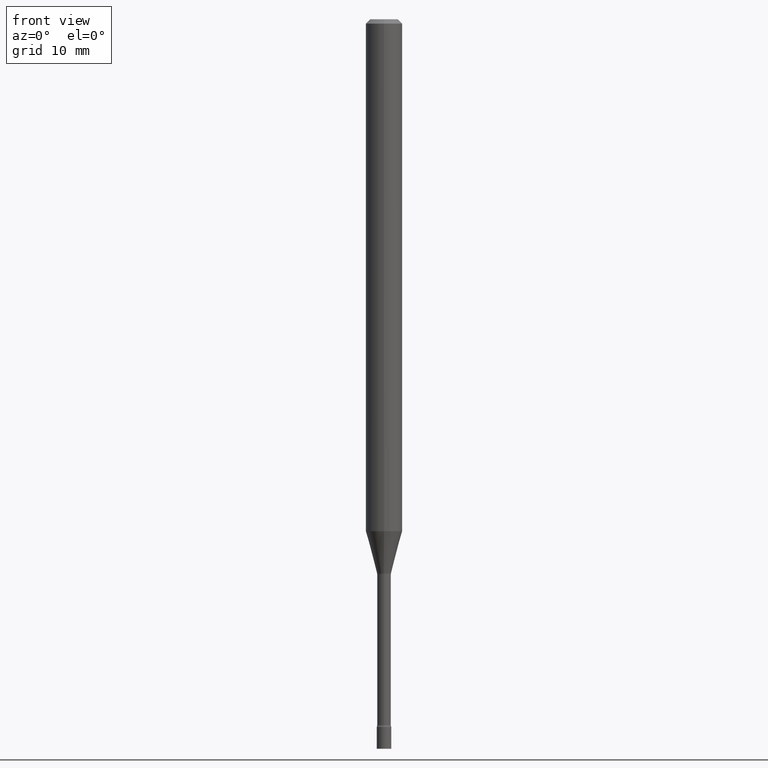
[diagram: clean part render]
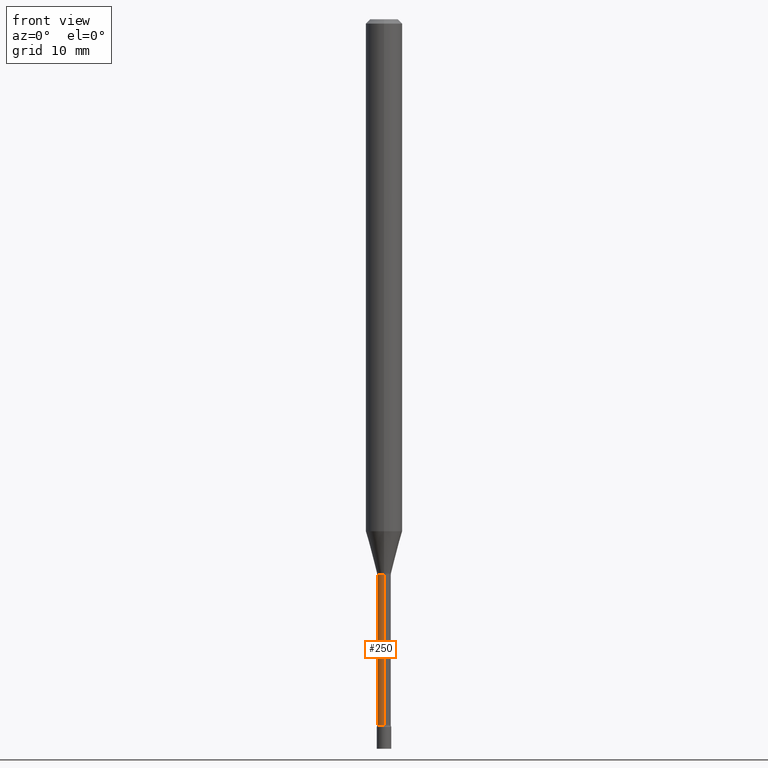
[diagram: same view with one face highlighted and labeled with its STEP entity id]
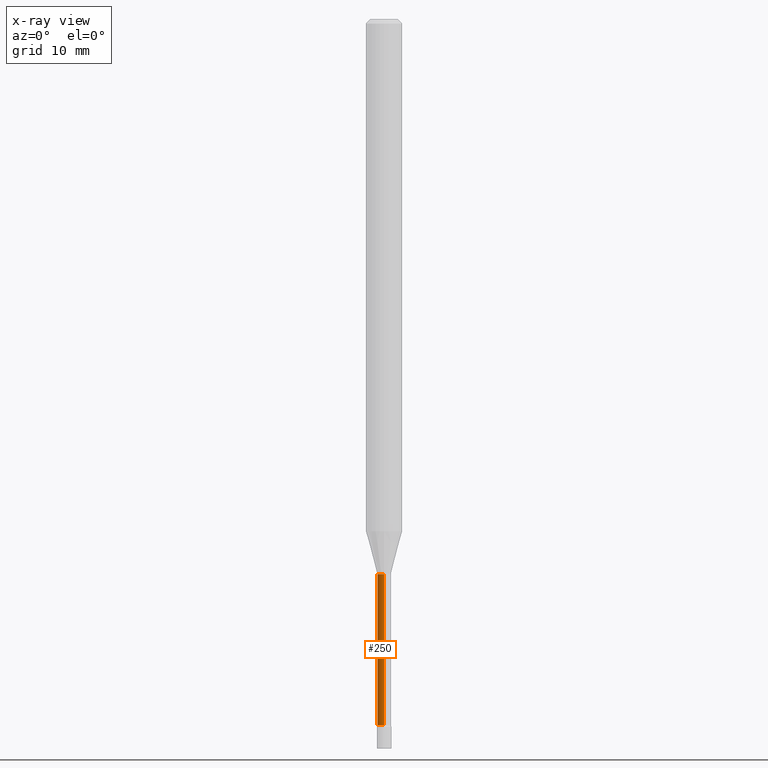
[diagram: x-ray of the same camera — body ghosted, the highlighted face saturated]
A machine part, front view. The second image highlights one B-rep face of the part: STEP entity #250.
The next image is the same camera in x-ray: the body ghosted, the highlighted face saturated — about 0% of this face is hidden behind the body in this view.
In plain terms, the highlighted cylindrical surface (edge-blend (fillet) strip) has radius 0.5969 mm, axis along (-0, 0, 1).
Its self-contained STEP definition (entity closure, byte-faithful):
#10 = EDGE_CURVE ( 'NONE', #329, #120, #154, .T. ) ;
#21 = AXIS2_PLACEMENT_3D ( 'NONE', #39, #406, #278 ) ;
#39 = CARTESIAN_POINT ( 'NONE',  ( 0.000000000000000000, 0.000000000000000000, 0.000000000000000000 ) ) ;
#78 = DIRECTION ( 'NONE',  ( -6.982962677686265922E-15, -1.000000000000000000, 0.000000000000000000 ) ) ;
#110 = DIRECTION ( 'NONE',  ( -2.445461215800332779E-29, 3.491492208706202500E-15, 1.000000000000000000 ) ) ;
#112 = FACE_OUTER_BOUND ( 'NONE', #342, .T. ) ;
#116 = LINE ( 'NONE', #297, #348 ) ;
#119 = CARTESIAN_POINT ( 'NONE',  ( -1.640996229255686790E-16, -0.02350000000000852796, -2.418461651584689509 ) ) ;
#120 = VERTEX_POINT ( 'NONE', #142 ) ;
#142 = CARTESIAN_POINT ( 'NONE',  ( -1.640996229255807584E-16, -0.02350000000000664405, -1.901974787463811323 ) ) ;
#154 = LINE ( 'NONE', #316, #476 ) ;
#157 = CARTESIAN_POINT ( 'NONE',  ( 5.914254170850774673E-29, -8.444040013562677130E-15, -2.418461651584689509 ) ) ;
#158 = CYLINDRICAL_SURFACE ( 'NONE', #21, 0.02350000000000004516 ) ;
#184 = DIRECTION ( 'NONE',  ( -6.982962677686265133E-15, -1.000000000000000000, 0.000000000000000000 ) ) ;
#192 = ORIENTED_EDGE ( 'NONE', *, *, #259, .F. ) ;
#195 = CARTESIAN_POINT ( 'NONE',  ( 1.669775429036829552E-16, 0.02349999999999336300, -1.901974787463811323 ) ) ;
#217 = ORIENTED_EDGE ( 'NONE', *, *, #10, .T. ) ;
#232 = AXIS2_PLACEMENT_3D ( 'NONE', #322, #110, #78 ) ;
#237 = DIRECTION ( 'NONE',  ( -2.445461215800333059E-29, 3.491492208706202106E-15, 1.000000000000000000 ) ) ;
#247 = ORIENTED_EDGE ( 'NONE', *, *, #296, .T. ) ;
#250 = ADVANCED_FACE ( 'NONE', ( #112 ), #158, .T. ) ;
#259 = EDGE_CURVE ( 'NONE', #295, #120, #512, .T. ) ;
#278 = DIRECTION ( 'NONE',  ( -6.982962677686265133E-15, -1.000000000000000000, 3.491492208706202500E-15 ) ) ;
#280 = CIRCLE ( 'NONE', #483, 0.02350000000000008332 ) ;
#295 = VERTEX_POINT ( 'NONE', #195 ) ;
#296 = EDGE_CURVE ( 'NONE', #361, #329, #280, .T. ) ;
#297 = CARTESIAN_POINT ( 'NONE',  ( 1.669775429036238399E-16, 0.02350000000000004516, -8.205006690459591386E-17 ) ) ;
#313 = EDGE_CURVE ( 'NONE', #361, #295, #116, .T. ) ;
#316 = CARTESIAN_POINT ( 'NONE',  ( -1.640996229256275477E-16, -0.02350000000000004516, 8.205006690459591386E-17 ) ) ;
#317 = CARTESIAN_POINT ( 'NONE',  ( 1.723066134218837359E-16, 0.02349999999999163869, -2.418461651584689509 ) ) ;
#322 = CARTESIAN_POINT ( 'NONE',  ( 4.651205576172831719E-29, -6.640730151585532427E-15, -1.901974787463811323 ) ) ;
#325 = DIRECTION ( 'NONE',  ( -2.445461215800333059E-29, 3.491492208706202106E-15, 1.000000000000000000 ) ) ;
#329 = VERTEX_POINT ( 'NONE', #119 ) ;
#342 = EDGE_LOOP ( 'NONE', ( #465, #247, #217, #192 ) ) ;
#348 = VECTOR ( 'NONE', #325, 39.37007874015748143 ) ;
#361 = VERTEX_POINT ( 'NONE', #317 ) ;
#406 = DIRECTION ( 'NONE',  ( -2.445461215800332779E-29, 3.491492208706202500E-15, 1.000000000000000000 ) ) ;
#444 = DIRECTION ( 'NONE',  ( -2.445461215800332779E-29, 3.491492208706202500E-15, 1.000000000000000000 ) ) ;
#465 = ORIENTED_EDGE ( 'NONE', *, *, #313, .F. ) ;
#476 = VECTOR ( 'NONE', #237, 39.37007874015748143 ) ;
#483 = AXIS2_PLACEMENT_3D ( 'NONE', #157, #444, #184 ) ;
#512 = CIRCLE ( 'NONE', #232, 0.02350000000000000352 ) ;